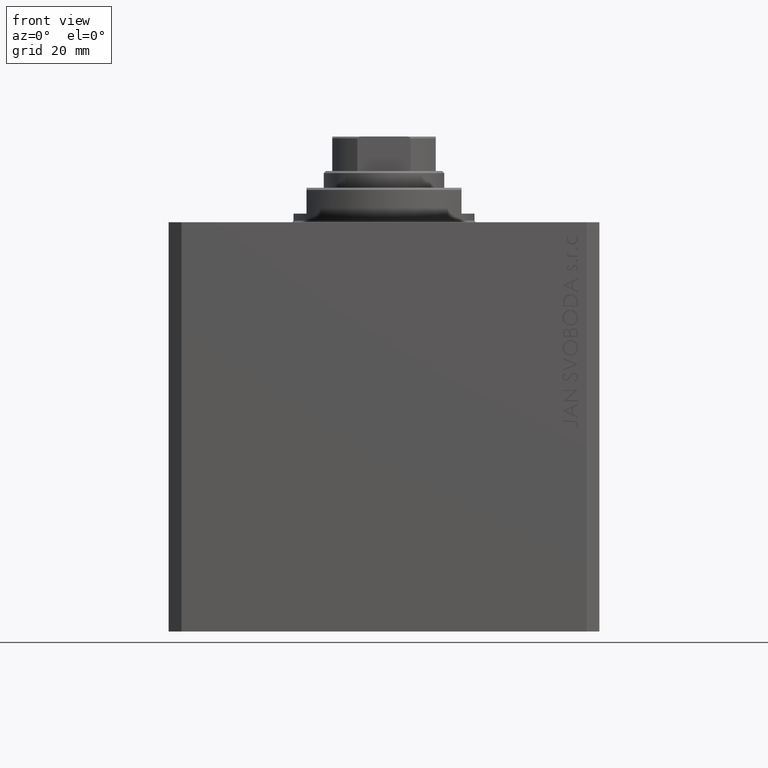
[diagram: clean part render]
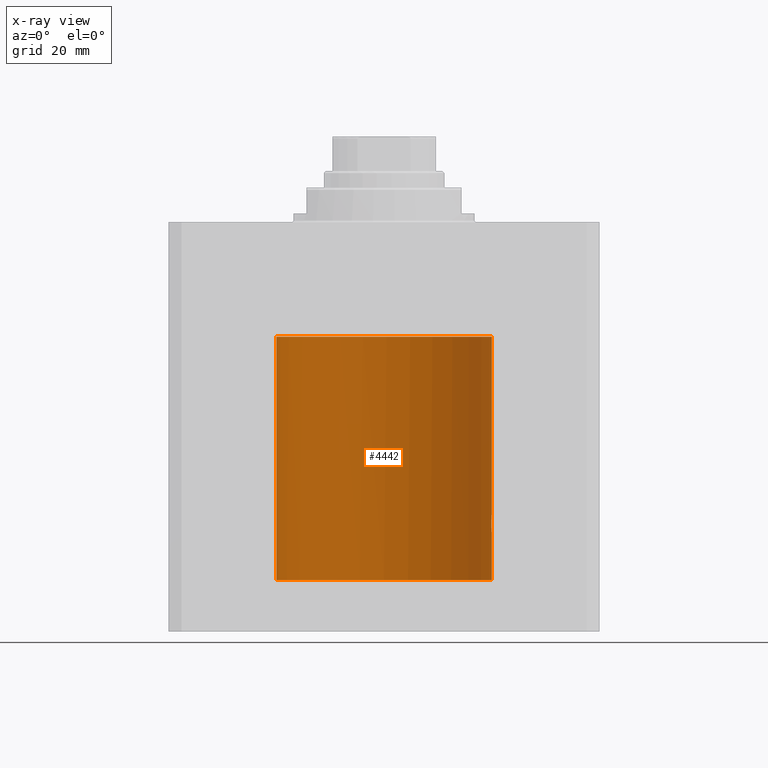
[diagram: x-ray — body ghosted, one internal face saturated and labeled with its STEP entity id]
A machine part, front view, then the same camera in x-ray: the body is ghosted and one INTERNAL B-rep face — a face not visible from any outside direction — is saturated and labeled: STEP entity #4442.
In plain terms, the highlighted cylindrical surface (partial cylindrical patch) has radius 25 mm, axis along (0, 0, 1).
Its self-contained STEP definition (entity closure, byte-faithful):
#680 = DIRECTION ( 'NONE',  ( 1.000000000000000000, 0.000000000000000000, 0.000000000000000000 ) ) ;
#1087 = CARTESIAN_POINT ( 'NONE',  ( -25.00000000000000000, 3.060241555953638093E-15, -26.99999999999999645 ) ) ;
#2161 = VERTEX_POINT ( 'NONE', #6653 ) ;
#2294 = CARTESIAN_POINT ( 'NONE',  ( 24.99895171050671294, 0.2622427397369110347, -71.98701522632683236 ) ) ;
#2745 = CARTESIAN_POINT ( 'NONE',  ( 24.91987158875419439, 2.000000000000375699, -69.86952236750347822 ) ) ;
#2970 = CARTESIAN_POINT ( 'NONE',  ( 24.93533359819881667, 1.797683477752171743, -69.11371245509397454 ) ) ;
#3537 = CARTESIAN_POINT ( 'NONE',  ( -25.00000000000000000, 3.061616997868383043E-15, -83.10000000000000853 ) ) ;
#4402 = DIRECTION ( 'NONE',  ( 1.000000000000000000, 0.000000000000000000, 0.000000000000000000 ) ) ;
#4442 = ADVANCED_FACE ( 'NONE', ( #21553 ), #22228, .F. ) ;
#5060 = EDGE_CURVE ( 'NONE', #2161, #16558, #9565, .T. ) ;
#5923 = CARTESIAN_POINT ( 'NONE',  ( 24.95467834240023919, 1.507571193169164436, -68.67914516237102873 ) ) ;
#6219 = CARTESIAN_POINT ( 'NONE',  ( -25.00000000000000000, 3.060241555953638093E-15, -26.99999999999999645 ) ) ;
#6305 = CARTESIAN_POINT ( 'NONE',  ( -24.97950800354324485, 1.026770500031154887, -26.72992212497661768 ) ) ;
#6344 = CARTESIAN_POINT ( 'NONE',  ( 24.99196954445030627, 0.6450912151121352966, -71.89764367645020116 ) ) ;
#6358 = CARTESIAN_POINT ( 'NONE',  ( 24.98009620012517829, 1.003265033550135854, -68.26494305889431757 ) ) ;
#6590 = CARTESIAN_POINT ( 'NONE',  ( 24.92092960952687264, 1.986938806757485132, -69.73699118910587913 ) ) ;
#6653 = CARTESIAN_POINT ( 'NONE',  ( 25.00000000000000000, 0.000000000000000000, -83.10000000000000853 ) ) ;
#6812 = CARTESIAN_POINT ( 'NONE',  ( 24.94947734723934829, 1.590234439578154468, -68.78011295253190838 ) ) ;
#7279 = VECTOR ( 'NONE', #30475, 1000.000000000000000 ) ;
#7335 = AXIS2_PLACEMENT_3D ( 'NONE', #21219, #34936, #680 ) ;
#7514 = VERTEX_POINT ( 'NONE', #20936 ) ;
#8420 = EDGE_CURVE ( 'NONE', #30782, #9358, #25496, .T. ) ;
#9200 = VECTOR ( 'NONE', #33778, 1000.000000000000000 ) ;
#9358 = VERTEX_POINT ( 'NONE', #16045 ) ;
#9565 = CIRCLE ( 'NONE', #7335, 25.00000000000000000 ) ;
#9686 = CARTESIAN_POINT ( 'NONE',  ( -24.98680550328683125, 0.8376193197215402453, -26.82896000732461061 ) ) ;
#10341 = CARTESIAN_POINT ( 'NONE',  ( 0.000000000000000000, 0.000000000000000000, -26.60000000000000142 ) ) ;
#10713 = VERTEX_POINT ( 'NONE', #15781 ) ;
#11261 = CARTESIAN_POINT ( 'NONE',  ( 25.00000000000000000, 0.000000000000000000, -83.10000000000000853 ) ) ;
#11424 = ORIENTED_EDGE ( 'NONE', *, *, #15025, .T. ) ;
#11667 = EDGE_CURVE ( 'NONE', #16558, #21061, #44159, .T. ) ;
#12225 = CARTESIAN_POINT ( 'NONE',  ( 24.97046928552373046, 1.219632852334577633, -71.59046721778373978 ) ) ;
#12577 = B_SPLINE_CURVE_WITH_KNOTS ( 'NONE', 3,
 ( #40551, #6305, #9686, #20057, #13297, #1087 ),
 .UNSPECIFIED., .F., .F.,
 ( 4, 2, 4 ),
 ( 0.000000000000000000, 0.0006408866495840856480, 0.001281773299168171296 ),
 .UNSPECIFIED. ) ;
#12763 = ORIENTED_EDGE ( 'NONE', *, *, #8420, .T. ) ;
#13297 = CARTESIAN_POINT ( 'NONE',  ( -25.00000000000000355, 0.2156805908219409651, -26.99999999999999645 ) ) ;
#13728 = DIRECTION ( 'NONE',  ( 1.000000000000000000, 0.000000000000000000, 0.000000000000000000 ) ) ;
#14689 = AXIS2_PLACEMENT_3D ( 'NONE', #10341, #44608, #13728 ) ;
#14859 = ORIENTED_EDGE ( 'NONE', *, *, #17705, .T. ) ;
#15025 = EDGE_CURVE ( 'NONE', #10713, #7514, #16520, .T. ) ;
#15781 = CARTESIAN_POINT ( 'NONE',  ( 25.00000000000000000, 3.613683980139323145E-15, -72.00000000000001421 ) ) ;
#16045 = CARTESIAN_POINT ( 'NONE',  ( -24.97118339206214088, 1.199999999999987521, -26.59999999999999787 ) ) ;
#16297 = CARTESIAN_POINT ( 'NONE',  ( 24.93982559358191153, 1.735040297787688646, -68.99670286233151728 ) ) ;
#16520 = B_SPLINE_CURVE_WITH_KNOTS ( 'NONE', 3,
 ( #43100, #22832, #2294, #43531, #6344, #43319, #30243, #12225, #19217, #40128, #26678, #19873, #32946, #43982 ),
 .UNSPECIFIED., .F., .F.,
 ( 4, 2, 2, 2, 2, 2, 4 ),
 ( 3.511612687242254074E-18, 0.0003910529405526748294, 0.0007821058811053461894, 0.001173158821658017766, 0.001564211762210689343, 0.002346317643316032063, 0.003128423524421375217 ),
 .UNSPECIFIED. ) ;
#16558 = VERTEX_POINT ( 'NONE', #3537 ) ;
#16757 = CARTESIAN_POINT ( 'NONE',  ( 24.99199530066696795, 0.6440939830361788188, -68.10201906410964057 ) ) ;
#17705 = EDGE_CURVE ( 'NONE', #9358, #21061, #12577, .T. ) ;
#17839 = ORIENTED_EDGE ( 'NONE', *, *, #25960, .T. ) ;
#18266 = VERTEX_POINT ( 'NONE', #23306 ) ;
#18934 = DIRECTION ( 'NONE',  ( -0.000000000000000000, -0.000000000000000000, 1.000000000000000000 ) ) ;
#19217 = CARTESIAN_POINT ( 'NONE',  ( 24.96516502151963124, 1.322522485723470531, -71.50597235110980421 ) ) ;
#19873 = CARTESIAN_POINT ( 'NONE',  ( 24.92422785753204906, 1.947526681255389525, -70.52444535332155340 ) ) ;
#20057 = CARTESIAN_POINT ( 'NONE',  ( -24.99718407171789991, 0.4276024655076519632, -26.96566959702169086 ) ) ;
#20342 = CARTESIAN_POINT ( 'NONE',  ( 24.92495585240437350, 1.935777409849491759, -69.48051441220840729 ) ) ;
#20569 = CARTESIAN_POINT ( 'NONE',  ( 25.00000000000000000, -1.072061970195355044E-23, -68.00000000000000000 ) ) ;
#20936 = CARTESIAN_POINT ( 'NONE',  ( 24.91987158875419794, 2.000000000000375255, -70.00000000000000000 ) ) ;
#21061 = VERTEX_POINT ( 'NONE', #6219 ) ;
#21219 = CARTESIAN_POINT ( 'NONE',  ( 0.000000000000000000, 0.000000000000000000, -83.10000000000000853 ) ) ;
#21553 = FACE_OUTER_BOUND ( 'NONE', #25791, .T. ) ;
#21954 = CARTESIAN_POINT ( 'NONE',  ( 25.00000000000000000, 0.000000000000000000, -26.60000000000000142 ) ) ;
#22228 = CYLINDRICAL_SURFACE ( 'NONE', #40468, 25.00000000000000000 ) ;
#22832 = CARTESIAN_POINT ( 'NONE',  ( 25.00000000000000355, 0.1322318523520167877, -72.00000000000002842 ) ) ;
#23066 = CARTESIAN_POINT ( 'NONE',  ( 24.96525661602875701, 1.320872503675244003, -68.49244428507738292 ) ) ;
#23306 = CARTESIAN_POINT ( 'NONE',  ( 25.00000000000000000, -1.072061970195355044E-23, -68.00000000000000000 ) ) ;
#23628 = ORIENTED_EDGE ( 'NONE', *, *, #43740, .T. ) ;
#23669 = CARTESIAN_POINT ( 'NONE',  ( -25.00000000000000000, 3.061616997868383043E-15, -83.10000000000000853 ) ) ;
#25496 = CIRCLE ( 'NONE', #14689, 25.00000000000000000 ) ;
#25791 = EDGE_LOOP ( 'NONE', ( #33364, #42622, #17839, #11424, #23628, #41798, #12763, #14859 ) ) ;
#25960 = EDGE_CURVE ( 'NONE', #2161, #10713, #29532, .T. ) ;
#26678 = CARTESIAN_POINT ( 'NONE',  ( 24.93900639076503722, 1.748128916801924504, -71.00595645684244062 ) ) ;
#26921 = CARTESIAN_POINT ( 'NONE',  ( 25.00000000000000000, 0.000000000000000000, -83.10000000000000853 ) ) ;
#29532 = LINE ( 'NONE', #11261, #32142 ) ;
#30047 = CARTESIAN_POINT ( 'NONE',  ( 24.98457651818866765, 0.8863534138924961114, -68.20234421602243913 ) ) ;
#30243 = CARTESIAN_POINT ( 'NONE',  ( 24.98014008684978648, 1.002218476749560327, -71.73569824284065533 ) ) ;
#30255 = CARTESIAN_POINT ( 'NONE',  ( 24.92790171662583276, 1.897957730269075105, -69.35585098575666052 ) ) ;
#30475 = DIRECTION ( 'NONE',  ( -0.000000000000000000, -0.000000000000000000, 1.000000000000000000 ) ) ;
#30782 = VERTEX_POINT ( 'NONE', #21954 ) ;
#31898 = DIRECTION ( 'NONE',  ( -0.000000000000000000, -0.000000000000000000, 1.000000000000000000 ) ) ;
#32142 = VECTOR ( 'NONE', #18934, 1000.000000000000000 ) ;
#32946 = CARTESIAN_POINT ( 'NONE',  ( 24.91987158875419439, 2.000000000000375699, -70.26107520611000723 ) ) ;
#33183 = LINE ( 'NONE', #26921, #7279 ) ;
#33364 = ORIENTED_EDGE ( 'NONE', *, *, #11667, .F. ) ;
#33778 = DIRECTION ( 'NONE',  ( -0.000000000000000000, -0.000000000000000000, 1.000000000000000000 ) ) ;
#34064 = CARTESIAN_POINT ( 'NONE',  ( 24.99894413130754600, 0.2631018416927612402, -68.01307842488789390 ) ) ;
#34901 = B_SPLINE_CURVE_WITH_KNOTS ( 'NONE', 3,
 ( #37225, #2745, #6590, #20342, #30255, #2970, #16297, #6812, #5923, #23066, #37453, #6358, #30047, #16757, #43999, #34064, #40826, #20569 ),
 .UNSPECIFIED., .F., .F.,
 ( 4, 2, 2, 2, 2, 2, 2, 2, 4 ),
 ( 0.003128423524421375217, 0.003519296810509137119, 0.003910170096596899021, 0.004301043382684660923, 0.004691916668772423693, 0.005082789954860184728, 0.005473663240947946630, 0.005864536527035708532, 0.006255409813123470435 ),
 .UNSPECIFIED. ) ;
#34936 = DIRECTION ( 'NONE',  ( 0.000000000000000000, 0.000000000000000000, 1.000000000000000000 ) ) ;
#37225 = CARTESIAN_POINT ( 'NONE',  ( 24.91987158875419794, 2.000000000000375255, -70.00000000000000000 ) ) ;
#37453 = CARTESIAN_POINT ( 'NONE',  ( 24.97045842037802998, 1.219816859706691625, -68.40971381657300299 ) ) ;
#38651 = CARTESIAN_POINT ( 'NONE',  ( 0.000000000000000000, 0.000000000000000000, -83.10000000000000853 ) ) ;
#40128 = CARTESIAN_POINT ( 'NONE',  ( 24.94948532700468391, 1.599156973339999066, -71.22913415249136904 ) ) ;
#40468 = AXIS2_PLACEMENT_3D ( 'NONE', #38651, #31898, #4402 ) ;
#40551 = CARTESIAN_POINT ( 'NONE',  ( -24.97118339206214088, 1.199999999999987521, -26.59999999999999787 ) ) ;
#40826 = CARTESIAN_POINT ( 'NONE',  ( 25.00000000000000000, 0.1305261351234896783, -67.99999999999997158 ) ) ;
#41798 = ORIENTED_EDGE ( 'NONE', *, *, #42929, .T. ) ;
#42622 = ORIENTED_EDGE ( 'NONE', *, *, #5060, .F. ) ;
#42929 = EDGE_CURVE ( 'NONE', #18266, #30782, #33183, .T. ) ;
#43100 = CARTESIAN_POINT ( 'NONE',  ( 25.00000000000000000, 3.613683980139323145E-15, -72.00000000000001421 ) ) ;
#43319 = CARTESIAN_POINT ( 'NONE',  ( 24.98454161695537223, 0.8873356620645981296, -71.79717267434570260 ) ) ;
#43531 = CARTESIAN_POINT ( 'NONE',  ( 24.99496001540385848, 0.5180074392840622322, -71.93614799461352050 ) ) ;
#43740 = EDGE_CURVE ( 'NONE', #7514, #18266, #34901, .T. ) ;
#43982 = CARTESIAN_POINT ( 'NONE',  ( 24.91987158875419794, 2.000000000000375255, -70.00000000000000000 ) ) ;
#43999 = CARTESIAN_POINT ( 'NONE',  ( 24.99493190796009046, 0.5194315891213243663, -68.06421314474678752 ) ) ;
#44159 = LINE ( 'NONE', #23669, #9200 ) ;
#44608 = DIRECTION ( 'NONE',  ( 0.000000000000000000, 0.000000000000000000, 1.000000000000000000 ) ) ;